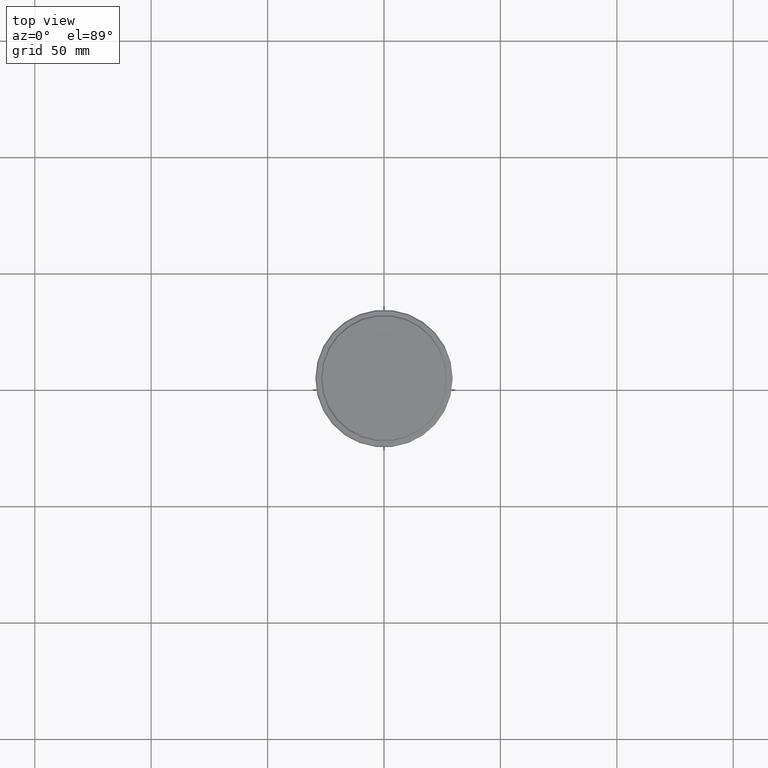
[diagram: clean part render]
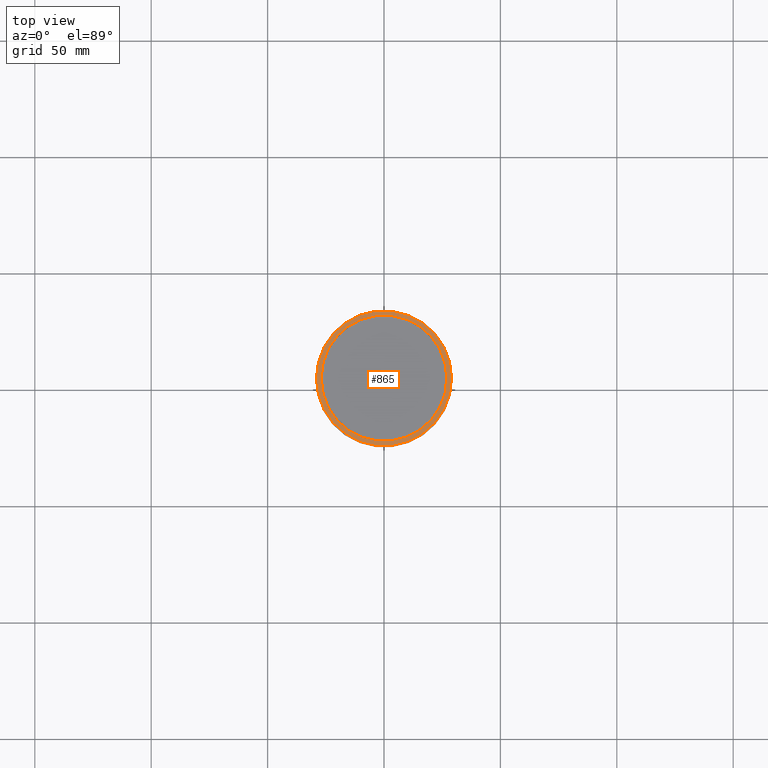
[diagram: same view with one face highlighted and labeled with its STEP entity id]
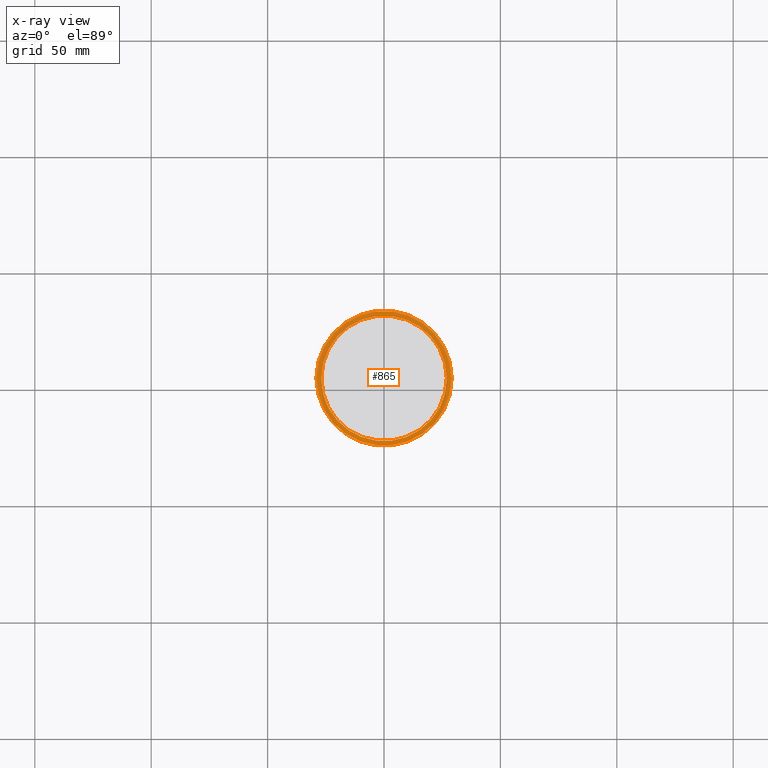
[diagram: x-ray of the same camera — body ghosted, the highlighted face saturated]
A machine part, top view. The second image highlights one B-rep face of the part: STEP entity #865.
The next image is the same camera in x-ray: the body ghosted, the highlighted face saturated — about 0% of this face is hidden behind the body in this view.
In plain terms, the highlighted planar face has unit normal (0, -0, 1).
Its self-contained STEP definition (entity closure, byte-faithful):
#65 = EDGE_LOOP ( 'NONE', ( #1160, #675 ) ) ;
#85 = DIRECTION ( 'NONE',  ( 0.000000000000000000, 0.000000000000000000, -1.000000000000000000 ) ) ;
#95 = FACE_BOUND ( 'NONE', #65, .T. ) ;
#98 = VERTEX_POINT ( 'NONE', #586 ) ;
#102 = ORIENTED_EDGE ( 'NONE', *, *, #428, .T. ) ;
#206 = AXIS2_PLACEMENT_3D ( 'NONE', #796, #1021, #1126 ) ;
#230 = CIRCLE ( 'NONE', #461, 26.99999999999999645 ) ;
#298 = CARTESIAN_POINT ( 'NONE',  ( 0.000000000000000000, 0.000000000000000000, -12.00000000000000355 ) ) ;
#389 = DIRECTION ( 'NONE',  ( 0.000000000000000000, 0.000000000000000000, -1.000000000000000000 ) ) ;
#401 = CARTESIAN_POINT ( 'NONE',  ( 0.000000000000000000, 0.000000000000000000, -12.00000000000000355 ) ) ;
#412 = VERTEX_POINT ( 'NONE', #1058 ) ;
#428 = EDGE_CURVE ( 'NONE', #98, #412, #923, .T. ) ;
#430 = DIRECTION ( 'NONE',  ( 1.000000000000000000, 0.000000000000000000, 0.000000000000000000 ) ) ;
#461 = AXIS2_PLACEMENT_3D ( 'NONE', #401, #389, #853 ) ;
#486 = AXIS2_PLACEMENT_3D ( 'NONE', #535, #970, #430 ) ;
#519 = CARTESIAN_POINT ( 'NONE',  ( 26.99999999999999645, 0.000000000000000000, -12.00000000000000355 ) ) ;
#535 = CARTESIAN_POINT ( 'NONE',  ( 0.000000000000000000, 26.49999999999999645, -12.00000000000000355 ) ) ;
#571 = EDGE_CURVE ( 'NONE', #755, #1064, #230, .T. ) ;
#574 = EDGE_CURVE ( 'NONE', #1064, #755, #1148, .T. ) ;
#586 = CARTESIAN_POINT ( 'NONE',  ( 28.99999999999999645, 3.582091887506007817E-15, -12.00000000000000355 ) ) ;
#600 = AXIS2_PLACEMENT_3D ( 'NONE', #730, #750, #1385 ) ;
#647 = PLANE ( 'NONE',  #486 ) ;
#675 = ORIENTED_EDGE ( 'NONE', *, *, #571, .T. ) ;
#730 = CARTESIAN_POINT ( 'NONE',  ( 0.000000000000000000, 0.000000000000000000, -12.00000000000000355 ) ) ;
#750 = DIRECTION ( 'NONE',  ( -0.000000000000000000, -0.000000000000000000, 1.000000000000000000 ) ) ;
#755 = VERTEX_POINT ( 'NONE', #1101 ) ;
#796 = CARTESIAN_POINT ( 'NONE',  ( 0.000000000000000000, 0.000000000000000000, -12.00000000000000355 ) ) ;
#853 = DIRECTION ( 'NONE',  ( 1.000000000000000000, 0.000000000000000000, 0.000000000000000000 ) ) ;
#865 = ADVANCED_FACE ( 'NONE', ( #1082, #95 ), #647, .T. ) ;
#923 = CIRCLE ( 'NONE', #600, 28.99999999999999645 ) ;
#928 = DIRECTION ( 'NONE',  ( 1.000000000000000000, 0.000000000000000000, 0.000000000000000000 ) ) ;
#970 = DIRECTION ( 'NONE',  ( 0.000000000000000000, -0.000000000000000000, 1.000000000000000000 ) ) ;
#1021 = DIRECTION ( 'NONE',  ( -0.000000000000000000, -0.000000000000000000, 1.000000000000000000 ) ) ;
#1048 = EDGE_LOOP ( 'NONE', ( #1277, #102 ) ) ;
#1058 = CARTESIAN_POINT ( 'NONE',  ( -28.99999999999999645, 0.000000000000000000, -12.00000000000000355 ) ) ;
#1064 = VERTEX_POINT ( 'NONE', #519 ) ;
#1082 = FACE_OUTER_BOUND ( 'NONE', #1048, .T. ) ;
#1101 = CARTESIAN_POINT ( 'NONE',  ( -26.99999999999999645, 3.306546357697853339E-15, -12.00000000000000355 ) ) ;
#1108 = CIRCLE ( 'NONE', #206, 28.99999999999999645 ) ;
#1126 = DIRECTION ( 'NONE',  ( 1.000000000000000000, 0.000000000000000000, 0.000000000000000000 ) ) ;
#1128 = AXIS2_PLACEMENT_3D ( 'NONE', #298, #85, #928 ) ;
#1148 = CIRCLE ( 'NONE', #1128, 26.99999999999999645 ) ;
#1160 = ORIENTED_EDGE ( 'NONE', *, *, #574, .T. ) ;
#1277 = ORIENTED_EDGE ( 'NONE', *, *, #1373, .T. ) ;
#1373 = EDGE_CURVE ( 'NONE', #412, #98, #1108, .T. ) ;
#1385 = DIRECTION ( 'NONE',  ( 1.000000000000000000, 0.000000000000000000, 0.000000000000000000 ) ) ;